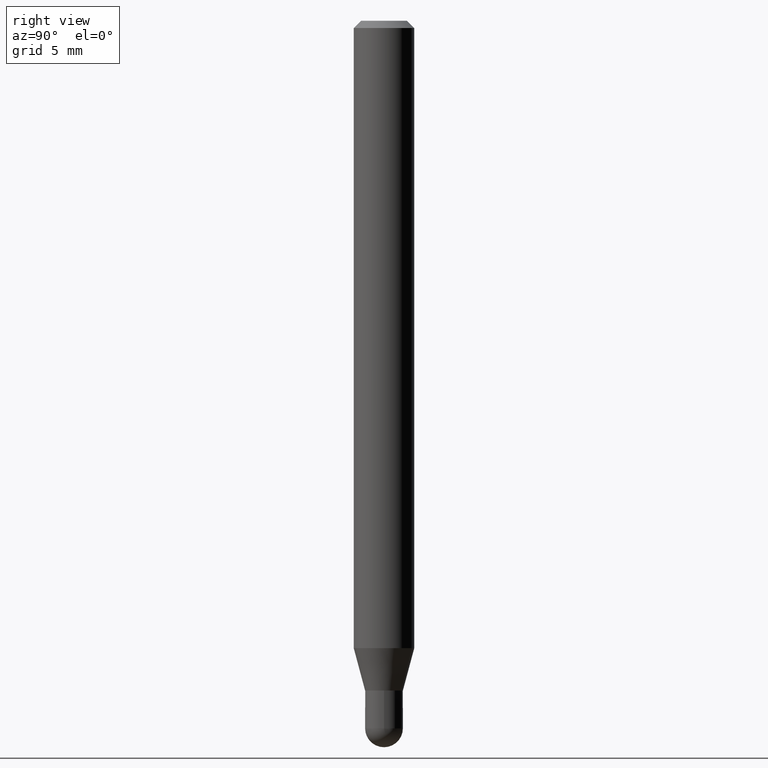
[diagram: clean part render]
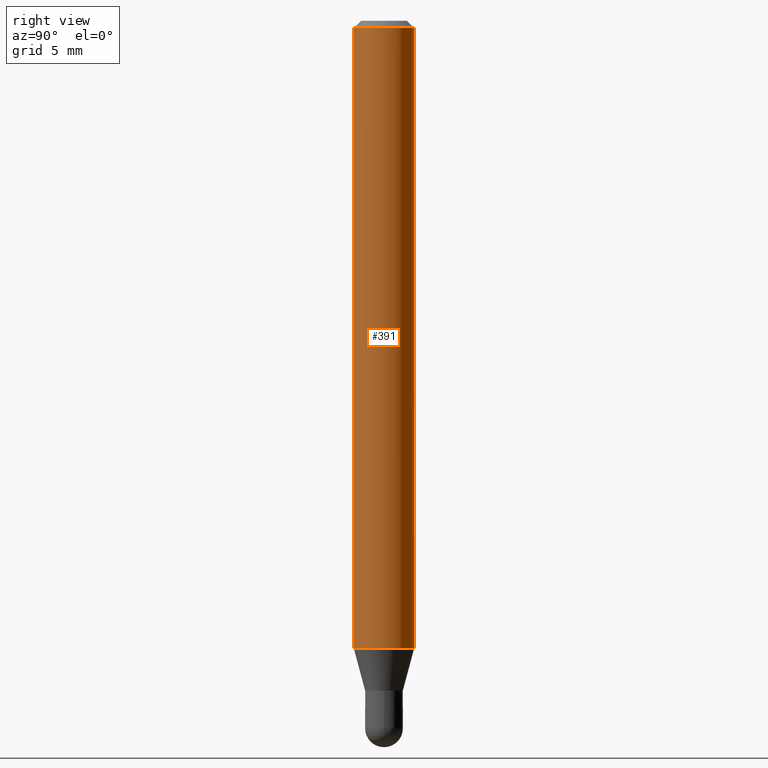
[diagram: same view with one face highlighted and labeled with its STEP entity id]
A machine part, right view. The second image highlights one B-rep face of the part: STEP entity #391.
In plain terms, the highlighted cylindrical surface (edge-blend (fillet) strip) has radius 1.5875 mm, axis along (-0, 0, 1).
Its self-contained STEP definition (entity closure, byte-faithful):
#7 = CARTESIAN_POINT ( 'NONE',  ( 4.440892098500944664E-16, 0.06249999999999995143, -0.01500000000000022669 ) ) ;
#17 = LINE ( 'NONE', #202, #437 ) ;
#46 = EDGE_CURVE ( 'NONE', #430, #189, #17, .T. ) ;
#68 = CARTESIAN_POINT ( 'NONE',  ( 4.440892098500625669E-16, 0.06250000000000000000, -2.182155161558671684E-16 ) ) ;
#70 = CARTESIAN_POINT ( 'NONE',  ( -4.364351673553912750E-16, -0.06250000000000005551, -0.01499999999999979128 ) ) ;
#108 = DIRECTION ( 'NONE',  ( -2.445491906069568494E-29, 3.491448258493875090E-15, 1.000000000000000000 ) ) ;
#113 = ORIENTED_EDGE ( 'NONE', *, *, #150, .T. ) ;
#121 = AXIS2_PLACEMENT_3D ( 'NONE', #460, #108, #395 ) ;
#124 = CARTESIAN_POINT ( 'NONE',  ( -4.364351673553602629E-16, -0.06250000000000455191, -1.295296806022133707 ) ) ;
#148 = VERTEX_POINT ( 'NONE', #344 ) ;
#150 = EDGE_CURVE ( 'NONE', #148, #463, #504, .T. ) ;
#182 = CARTESIAN_POINT ( 'NONE',  ( 3.167637855084892691E-29, -4.522461777618659475E-15, -1.295296806022133929 ) ) ;
#188 = DIRECTION ( 'NONE',  ( -6.982962677686265922E-15, -1.000000000000000000, 4.370956789862821150E-15 ) ) ;
#189 = VERTEX_POINT ( 'NONE', #70 ) ;
#202 = CARTESIAN_POINT ( 'NONE',  ( -4.364351673553916201E-16, -0.06250000000000000000, 2.182155161558671684E-16 ) ) ;
#227 = EDGE_CURVE ( 'NONE', #430, #148, #368, .T. ) ;
#241 = FACE_OUTER_BOUND ( 'NONE', #458, .T. ) ;
#249 = EDGE_CURVE ( 'NONE', #189, #463, #475, .T. ) ;
#268 = CYLINDRICAL_SURFACE ( 'NONE', #459, 0.06250000000000000000 ) ;
#292 = ORIENTED_EDGE ( 'NONE', *, *, #46, .F. ) ;
#306 = DIRECTION ( 'NONE',  ( -2.445491906069568494E-29, 3.491448258493875484E-15, 1.000000000000000000 ) ) ;
#310 = AXIS2_PLACEMENT_3D ( 'NONE', #182, #385, #188 ) ;
#344 = CARTESIAN_POINT ( 'NONE',  ( 4.440892098500939734E-16, 0.06249999999999544115, -1.295296806022134373 ) ) ;
#368 = CIRCLE ( 'NONE', #310, 0.06250000000000000000 ) ;
#385 = DIRECTION ( 'NONE',  ( -2.445491906069568494E-29, 3.491448258493875090E-15, 1.000000000000000000 ) ) ;
#390 = DIRECTION ( 'NONE',  ( -2.445491906069568494E-29, 3.491448258493875090E-15, 1.000000000000000000 ) ) ;
#391 = ADVANCED_FACE ( 'NONE', ( #241 ), #268, .T. ) ;
#394 = ORIENTED_EDGE ( 'NONE', *, *, #227, .T. ) ;
#395 = DIRECTION ( 'NONE',  ( -6.982962677686265922E-15, -1.000000000000000000, 3.483106191921935554E-15 ) ) ;
#397 = DIRECTION ( 'NONE',  ( -6.982962677686265922E-15, -1.000000000000000000, 3.491448258493874695E-15 ) ) ;
#429 = CARTESIAN_POINT ( 'NONE',  ( 0.000000000000000000, 0.000000000000000000, 0.000000000000000000 ) ) ;
#430 = VERTEX_POINT ( 'NONE', #124 ) ;
#437 = VECTOR ( 'NONE', #488, 39.37007874015748143 ) ;
#458 = EDGE_LOOP ( 'NONE', ( #394, #113, #512, #292 ) ) ;
#459 = AXIS2_PLACEMENT_3D ( 'NONE', #429, #390, #397 ) ;
#460 = CARTESIAN_POINT ( 'NONE',  ( 3.668237859104355439E-31, -5.237172387740815938E-17, -0.01500000000000000812 ) ) ;
#463 = VERTEX_POINT ( 'NONE', #7 ) ;
#475 = CIRCLE ( 'NONE', #121, 0.06250000000000000000 ) ;
#488 = DIRECTION ( 'NONE',  ( -2.445491906069568494E-29, 3.491448258493875484E-15, 1.000000000000000000 ) ) ;
#504 = LINE ( 'NONE', #68, #508 ) ;
#508 = VECTOR ( 'NONE', #306, 39.37007874015748143 ) ;
#512 = ORIENTED_EDGE ( 'NONE', *, *, #249, .F. ) ;